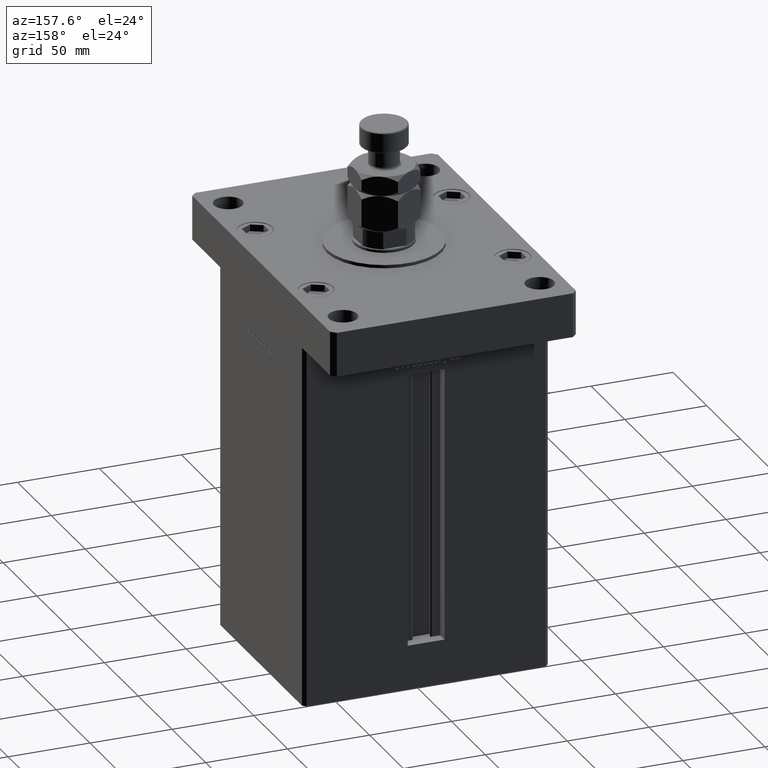
[diagram: clean part render]
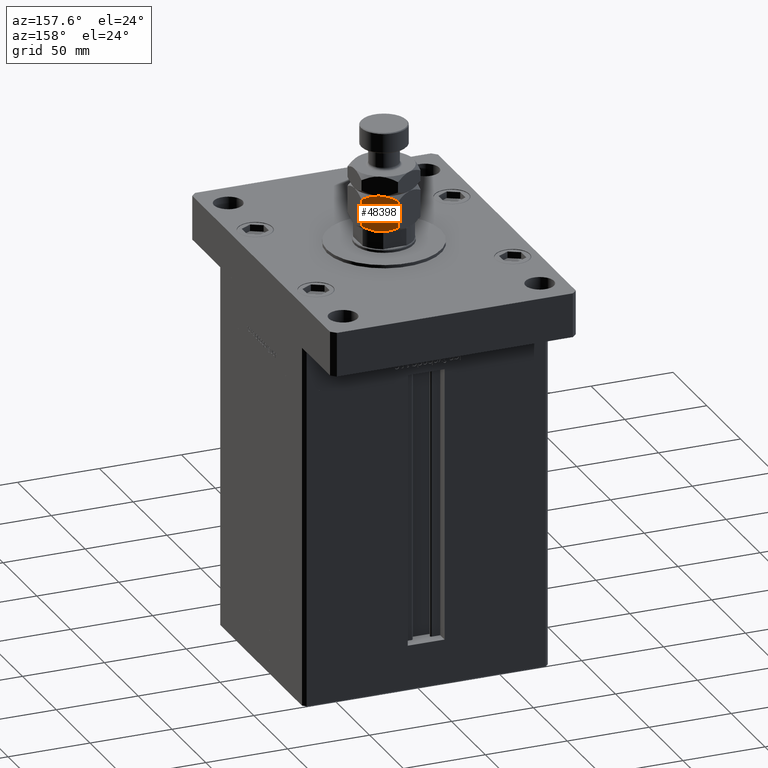
[diagram: same view with one face highlighted and labeled with its STEP entity id]
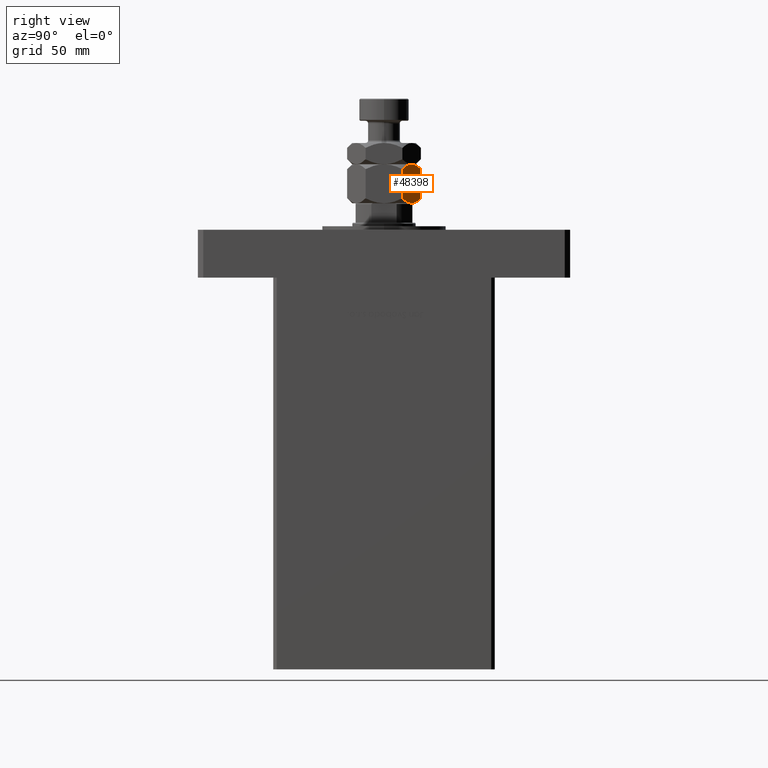
[diagram: same view with one face highlighted and labeled with its STEP entity id]
A machine part, auxiliary view. The second image highlights one B-rep face of the part: STEP entity #48398.
A second angle (right view) of the same face is appended — the face is thin or edge-on in the first view.
In plain terms, the highlighted planar face has unit normal (-0.5, -0.866, 0).
Its self-contained STEP definition (entity closure, byte-faithful):
#251 = CARTESIAN_POINT ( 'NONE',  ( 15.13928418966203004, 12.04393988858690179, 1.272574701504239680 ) ) ;
#545 = CARTESIAN_POINT ( 'NONE',  ( 1.409696000463982912, 19.97072132548310108, 20.02927867451694510 ) ) ;
#1076 = CARTESIAN_POINT ( 'NONE',  ( 10.56546083169953754, 14.68463803553234825, -3.293264098924718535E-15 ) ) ;
#1686 = DIRECTION ( 'NONE',  ( 0.8660254037844387076, -0.4999999999999999445, 0.000000000000000000 ) ) ;
#2359 = B_SPLINE_CURVE_WITH_KNOTS ( 'NONE', 3,
 ( #38291, #1076, #29629, #251, #39107, #46662 ),
 .UNSPECIFIED., .F., .F.,
 ( 4, 2, 4 ),
 ( 0.01077282027732746894, 0.01612137750481873466, 0.02146993473231000038 ),
 .UNSPECIFIED. ) ;
#2766 = CARTESIAN_POINT ( 'NONE',  ( -1.065242688631141971E-15, 20.78460969082652454, 2.784609690826513440 ) ) ;
#2900 = CARTESIAN_POINT ( 'NONE',  ( -2.339913671058857151E-16, 20.78460969082652454, 19.21539030917348256 ) ) ;
#3612 = CARTESIAN_POINT ( 'NONE',  ( 0.000000000000000000, 20.78460969082652454, 22.00000000000000000 ) ) ;
#3863 = CARTESIAN_POINT ( 'NONE',  ( 12.14199022028319774, 13.77442836864821629, 21.65943689774472602 ) ) ;
#3876 = VECTOR ( 'NONE', #37927, 1000.000000000000000 ) ;
#4291 = ORIENTED_EDGE ( 'NONE', *, *, #44180, .F. ) ;
#4510 = VERTEX_POINT ( 'NONE', #2900 ) ;
#5567 = CARTESIAN_POINT ( 'NONE',  ( -2.339913671058857151E-16, 20.78460969082652454, 19.21539030917348256 ) ) ;
#6204 = ORIENTED_EDGE ( 'NONE', *, *, #28352, .F. ) ;
#6972 = LINE ( 'NONE', #3612, #19123 ) ;
#7784 = CARTESIAN_POINT ( 'NONE',  ( 12.90267270303527525, 13.33524813246346952, 21.46291444417098759 ) ) ;
#8897 = EDGE_LOOP ( 'NONE', ( #41258, #4291, #33352, #6204, #37311, #50124 ) ) ;
#9211 = CARTESIAN_POINT ( 'NONE',  ( 2.860715810337963738, 19.13297464765287259, 20.72742529849575277 ) ) ;
#12247 = CARTESIAN_POINT ( 'NONE',  ( 9.394125676616230436, 15.36090870263096875, 22.00000000000000000 ) ) ;
#12514 = CARTESIAN_POINT ( 'NONE',  ( 18.00000000000000000, 10.39230484541326227, 19.21539030917347901 ) ) ;
#12525 = CARTESIAN_POINT ( 'NONE',  ( 10.58425150785354418, 14.67378923359658138, 21.91305310988184374 ) ) ;
#13842 = CARTESIAN_POINT ( 'NONE',  ( -1.065242688631141971E-15, 20.78460969082652454, 2.784609690826513440 ) ) ;
#15108 = DIRECTION ( 'NONE',  ( -0.4999999999999999445, -0.8660254037844387076, 0.000000000000000000 ) ) ;
#15895 = CARTESIAN_POINT ( 'NONE',  ( 18.00000000000000000, 10.39230484541326227, 19.21539030917347901 ) ) ;
#16455 = CARTESIAN_POINT ( 'NONE',  ( 2.854601888853809388, 19.13650452186755757, 1.277383077889868046 ) ) ;
#16724 = CARTESIAN_POINT ( 'NONE',  ( 15.14539811114618573, 12.04041001437222214, 20.72261692211012729 ) ) ;
#19123 = VECTOR ( 'NONE', #53620, 1000.000000000000000 ) ;
#20082 = CARTESIAN_POINT ( 'NONE',  ( 8.605874323383767788, 15.81600583360882162, -3.502481236896532691E-15 ) ) ;
#20647 = CARTESIAN_POINT ( 'NONE',  ( 1.411330396252046260, 19.96977770663490759, 1.969777706634896708 ) ) ;
#20700 = VERTEX_POINT ( 'NONE', #37649 ) ;
#20823 = CARTESIAN_POINT ( 'NONE',  ( 18.00000000000000000, 10.39230484541326227, 2.784609690826518325 ) ) ;
#22354 = CARTESIAN_POINT ( 'NONE',  ( 8.999999999999998224, 15.58845726811989429, 0.000000000000000000 ) ) ;
#23595 = VERTEX_POINT ( 'NONE', #12514 ) ;
#25393 = CARTESIAN_POINT ( 'NONE',  ( 9.000000000000000000, 15.58845726811989074, 22.00000000000000000 ) ) ;
#25800 = B_SPLINE_CURVE_WITH_KNOTS ( 'NONE', 3,
 ( #15895, #37405, #16724, #7784, #3863, #32925, #12525, #50526, #12247, #25393 ),
 .UNSPECIFIED., .F., .F.,
 ( 4, 2, 2, 2, 4 ),
 ( 2.544307986796311447E-07, 0.005386537354063075135, 0.008079678815695273339, 0.009426249546511372007, 0.01077282027732746894 ),
 .UNSPECIFIED. ) ;
#28352 = EDGE_CURVE ( 'NONE', #23595, #20700, #25800, .T. ) ;
#28760 = CARTESIAN_POINT ( 'NONE',  ( 8.999999999999998224, 15.58845726811989429, 0.000000000000000000 ) ) ;
#29629 = CARTESIAN_POINT ( 'NONE',  ( 12.10430252359947900, 13.79618737047370125, 0.2763959071215808527 ) ) ;
#32925 = CARTESIAN_POINT ( 'NONE',  ( 10.97671975407794953, 14.44719758599053705, 21.86127740090141458 ) ) ;
#33352 = ORIENTED_EDGE ( 'NONE', *, *, #42068, .F. ) ;
#33493 = CARTESIAN_POINT ( 'NONE',  ( 7.023280245922045140, 16.72971695024924443, 0.1387225990985735125 ) ) ;
#33735 = LINE ( 'NONE', #50778, #3876 ) ;
#33761 = VERTEX_POINT ( 'NONE', #20823 ) ;
#36047 = PLANE ( 'NONE',  #46950 ) ;
#36280 = B_SPLINE_CURVE_WITH_KNOTS ( 'NONE', 3,
 ( #2766, #20647, #16455, #37689, #54725, #33493, #45522, #55011, #20082, #28760 ),
 .UNSPECIFIED., .F., .F.,
 ( 4, 2, 2, 2, 4 ),
 ( 2.544307986815284985E-07, 0.005386537354063076002, 0.008079678815695275074, 0.009426249546511372007, 0.01077282027732746894 ),
 .UNSPECIFIED. ) ;
#37311 = ORIENTED_EDGE ( 'NONE', *, *, #40785, .T. ) ;
#37405 = CARTESIAN_POINT ( 'NONE',  ( 16.58866960374795241, 11.20713682960488100, 20.03022229336509596 ) ) ;
#37649 = CARTESIAN_POINT ( 'NONE',  ( 9.000000000000000000, 15.58845726811989074, 22.00000000000000000 ) ) ;
#37689 = CARTESIAN_POINT ( 'NONE',  ( 5.097327296964719423, 17.84166640377631197, 0.5370855558290075216 ) ) ;
#37927 = DIRECTION ( 'NONE',  ( -0.000000000000000000, -0.000000000000000000, -1.000000000000000000 ) ) ;
#38291 = CARTESIAN_POINT ( 'NONE',  ( 8.999999999999998224, 15.58845726811989429, 0.000000000000000000 ) ) ;
#38847 = CARTESIAN_POINT ( 'NONE',  ( 5.895697476400520110, 17.38072716576608201, 21.72360409287842131 ) ) ;
#39107 = CARTESIAN_POINT ( 'NONE',  ( 16.59030399953601531, 11.20619321075668218, 1.970721325483050235 ) ) ;
#39452 = EDGE_CURVE ( 'NONE', #50752, #42040, #36280, .T. ) ;
#40252 = FACE_OUTER_BOUND ( 'NONE', #8897, .T. ) ;
#40785 = EDGE_CURVE ( 'NONE', #23595, #33761, #33735, .T. ) ;
#41258 = ORIENTED_EDGE ( 'NONE', *, *, #39452, .F. ) ;
#42040 = VERTEX_POINT ( 'NONE', #22354 ) ;
#42068 = EDGE_CURVE ( 'NONE', #20700, #4510, #51877, .T. ) ;
#44180 = EDGE_CURVE ( 'NONE', #4510, #50752, #6972, .T. ) ;
#44986 = CARTESIAN_POINT ( 'NONE',  ( 18.00000000000000000, 10.39230484541326227, 22.00000000000000000 ) ) ;
#45522 = CARTESIAN_POINT ( 'NONE',  ( 7.415748492146453152, 16.50312530264320898, 0.08694689011815050217 ) ) ;
#46662 = CARTESIAN_POINT ( 'NONE',  ( 18.00000000000000000, 10.39230484541326227, 2.784609690826518325 ) ) ;
#46950 = AXIS2_PLACEMENT_3D ( 'NONE', #44986, #15108, #1686 ) ;
#47766 = CARTESIAN_POINT ( 'NONE',  ( 9.000000000000000000, 15.58845726811989074, 22.00000000000000000 ) ) ;
#48311 = CARTESIAN_POINT ( 'NONE',  ( 7.434539168300457135, 16.49227650070744033, 22.00000000000000711 ) ) ;
#48398 = ADVANCED_FACE ( 'NONE', ( #40252 ), #36047, .F. ) ;
#50124 = ORIENTED_EDGE ( 'NONE', *, *, #53017, .F. ) ;
#50526 = CARTESIAN_POINT ( 'NONE',  ( 9.790461530629873010, 15.13208409062669624, 21.98266714352591578 ) ) ;
#50752 = VERTEX_POINT ( 'NONE', #13842 ) ;
#50778 = CARTESIAN_POINT ( 'NONE',  ( 18.00000000000000000, 10.39230484541326227, 22.00000000000000000 ) ) ;
#51877 = B_SPLINE_CURVE_WITH_KNOTS ( 'NONE', 3,
 ( #47766, #48311, #38847, #9211, #545, #5567 ),
 .UNSPECIFIED., .F., .F.,
 ( 4, 2, 4 ),
 ( 0.01077282027732746894, 0.01612137750481873466, 0.02146993473231000385 ),
 .UNSPECIFIED. ) ;
#53017 = EDGE_CURVE ( 'NONE', #42040, #33761, #2359, .T. ) ;
#53620 = DIRECTION ( 'NONE',  ( -0.000000000000000000, -0.000000000000000000, -1.000000000000000000 ) ) ;
#54725 = CARTESIAN_POINT ( 'NONE',  ( 5.858009779716799592, 17.40248616759157230, 0.3405631022552657039 ) ) ;
#55011 = CARTESIAN_POINT ( 'NONE',  ( 8.209538469370125213, 16.04483044561309768, 0.01733285647408576435 ) ) ;